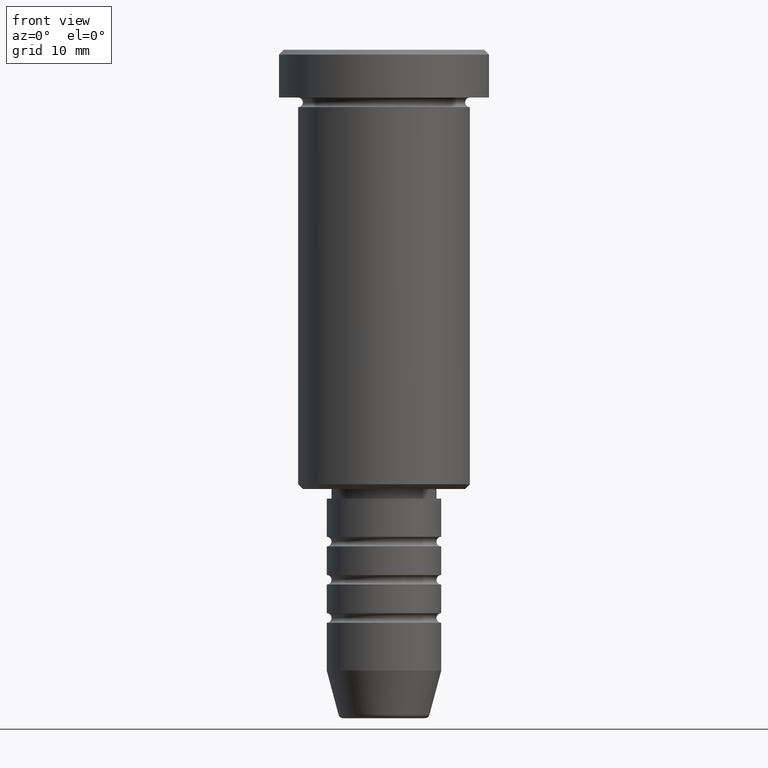
[diagram: clean part render]
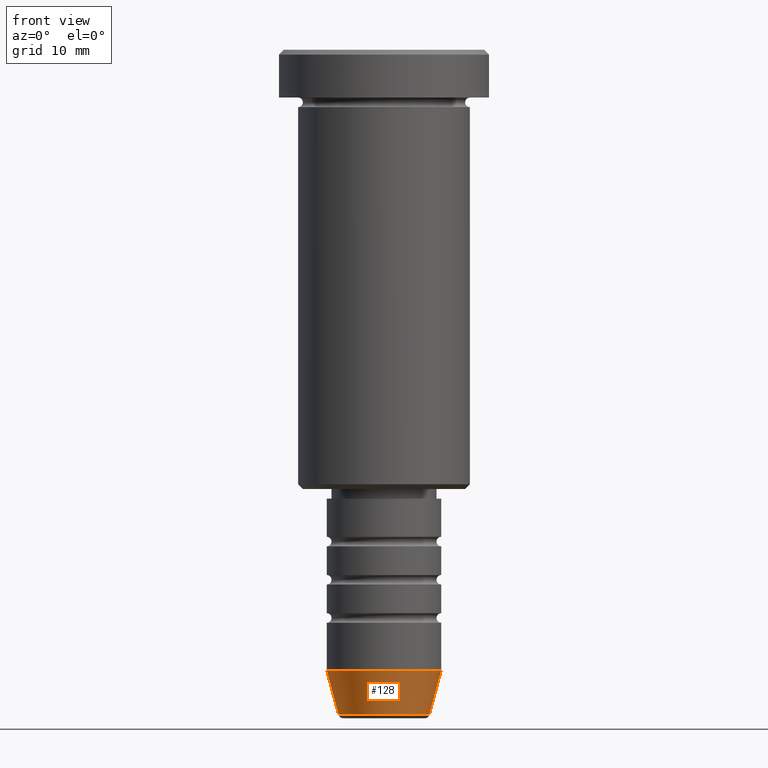
[diagram: same view with one face highlighted and labeled with its STEP entity id]
A machine part, front view. The second image highlights one B-rep face of the part: STEP entity #128.
In plain terms, the highlighted conical surface has half-angle 15 deg.
Its self-contained STEP definition (entity closure, byte-faithful):
#24 = ORIENTED_EDGE ( 'NONE', *, *, #281, .T. ) ;
#33 = DIRECTION ( 'NONE',  ( 1.000000000000000000, 0.000000000000000000, 0.000000000000000000 ) ) ;
#59 = LINE ( 'NONE', #513, #960 ) ;
#72 = CONICAL_SURFACE ( 'NONE', #938, 6.000000000000000000, 0.2617993877991500740 ) ;
#109 = CARTESIAN_POINT ( 'NONE',  ( 0.000000000000000000, 0.000000000000000000, -65.00000000000000000 ) ) ;
#122 = ORIENTED_EDGE ( 'NONE', *, *, #674, .F. ) ;
#127 = CARTESIAN_POINT ( 'NONE',  ( 0.000000000000000000, 0.000000000000000000, -65.00000000000000000 ) ) ;
#128 = ADVANCED_FACE ( 'NONE', ( #483 ), #72, .T. ) ;
#173 = AXIS2_PLACEMENT_3D ( 'NONE', #948, #612, #435 ) ;
#185 = VERTEX_POINT ( 'NONE', #680 ) ;
#236 = DIRECTION ( 'NONE',  ( 1.000000000000000000, 0.000000000000000000, 0.000000000000000000 ) ) ;
#240 = ORIENTED_EDGE ( 'NONE', *, *, #1134, .T. ) ;
#271 = CIRCLE ( 'NONE', #173, 4.759553456999436882 ) ;
#281 = EDGE_CURVE ( 'NONE', #635, #1048, #59, .T. ) ;
#347 = DIRECTION ( 'NONE',  ( 0.2588190451025213501, 0.000000000000000000, 0.9659258262890680902 ) ) ;
#381 = CARTESIAN_POINT ( 'NONE',  ( 6.000000000000000000, 0.000000000000000000, -65.00000000000000000 ) ) ;
#424 = DIRECTION ( 'NONE',  ( -0.2588190451025213501, 3.169619151431772337E-17, 0.9659258262890680902 ) ) ;
#435 = DIRECTION ( 'NONE',  ( 1.000000000000000000, 0.000000000000000000, 0.000000000000000000 ) ) ;
#436 = CARTESIAN_POINT ( 'NONE',  ( 4.759553456999436882, 0.000000000000000000, -69.62940952255127058 ) ) ;
#483 = FACE_OUTER_BOUND ( 'NONE', #1070, .T. ) ;
#484 = VERTEX_POINT ( 'NONE', #677 ) ;
#502 = DIRECTION ( 'NONE',  ( -0.000000000000000000, -0.000000000000000000, 1.000000000000000000 ) ) ;
#513 = CARTESIAN_POINT ( 'NONE',  ( 6.000000000000000000, 0.000000000000000000, -65.00000000000000000 ) ) ;
#612 = DIRECTION ( 'NONE',  ( -0.000000000000000000, -0.000000000000000000, 1.000000000000000000 ) ) ;
#635 = VERTEX_POINT ( 'NONE', #436 ) ;
#674 = EDGE_CURVE ( 'NONE', #185, #1048, #962, .T. ) ;
#677 = CARTESIAN_POINT ( 'NONE',  ( -4.759553456999436882, 6.588326350684601277E-16, -69.62940952255127058 ) ) ;
#680 = CARTESIAN_POINT ( 'NONE',  ( -6.000000000000000000, 7.347880794884119736E-16, -65.00000000000000000 ) ) ;
#736 = ORIENTED_EDGE ( 'NONE', *, *, #912, .F. ) ;
#891 = DIRECTION ( 'NONE',  ( -0.000000000000000000, -0.000000000000000000, 1.000000000000000000 ) ) ;
#912 = EDGE_CURVE ( 'NONE', #484, #185, #1156, .T. ) ;
#938 = AXIS2_PLACEMENT_3D ( 'NONE', #109, #502, #33 ) ;
#948 = CARTESIAN_POINT ( 'NONE',  ( 0.000000000000000000, 0.000000000000000000, -69.62940952255127058 ) ) ;
#960 = VECTOR ( 'NONE', #347, 1000.000000000000000 ) ;
#962 = CIRCLE ( 'NONE', #1168, 6.000000000000000000 ) ;
#1048 = VERTEX_POINT ( 'NONE', #381 ) ;
#1070 = EDGE_LOOP ( 'NONE', ( #736, #240, #24, #122 ) ) ;
#1105 = VECTOR ( 'NONE', #424, 1000.000000000000000 ) ;
#1134 = EDGE_CURVE ( 'NONE', #484, #635, #271, .T. ) ;
#1151 = CARTESIAN_POINT ( 'NONE',  ( -6.000000000000000000, 7.347880794884119736E-16, -65.00000000000000000 ) ) ;
#1156 = LINE ( 'NONE', #1151, #1105 ) ;
#1168 = AXIS2_PLACEMENT_3D ( 'NONE', #127, #891, #236 ) ;